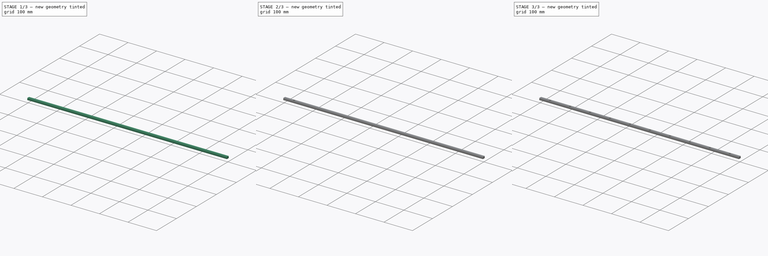
[diagram: build sequence overview — one tinted view per stage of 3, left to right]
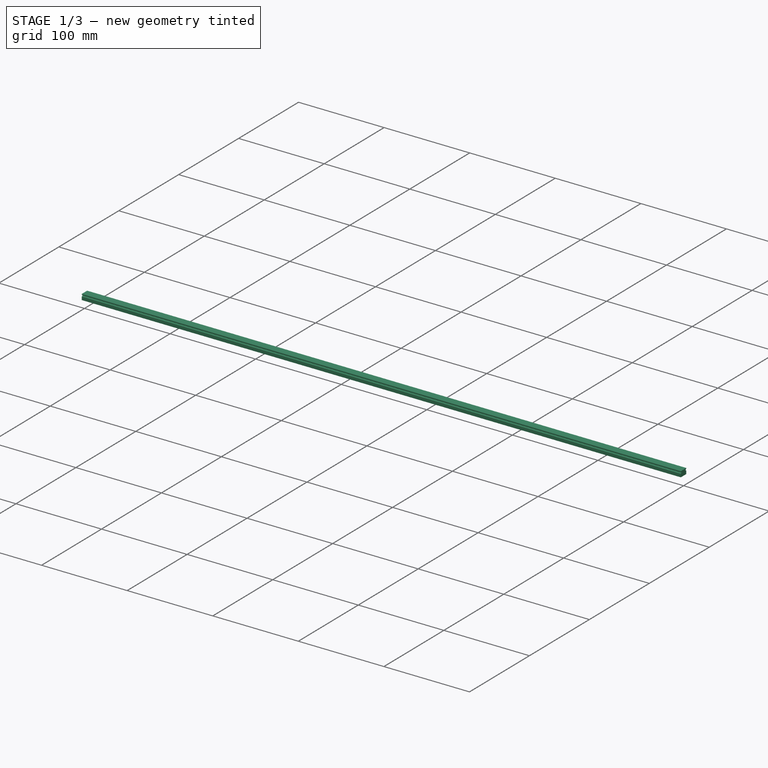
[diagram: stage 1 of 3 — iso view after this stage's code; geometry added in this stage tinted green]
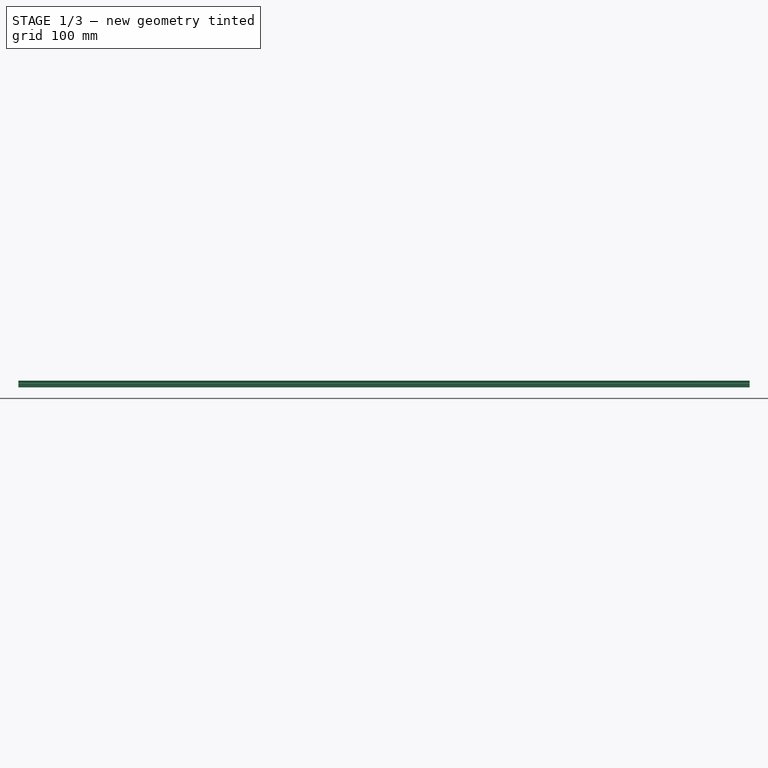
[diagram: stage 1 of 3 — front view after this stage's code; geometry added in this stage tinted green]
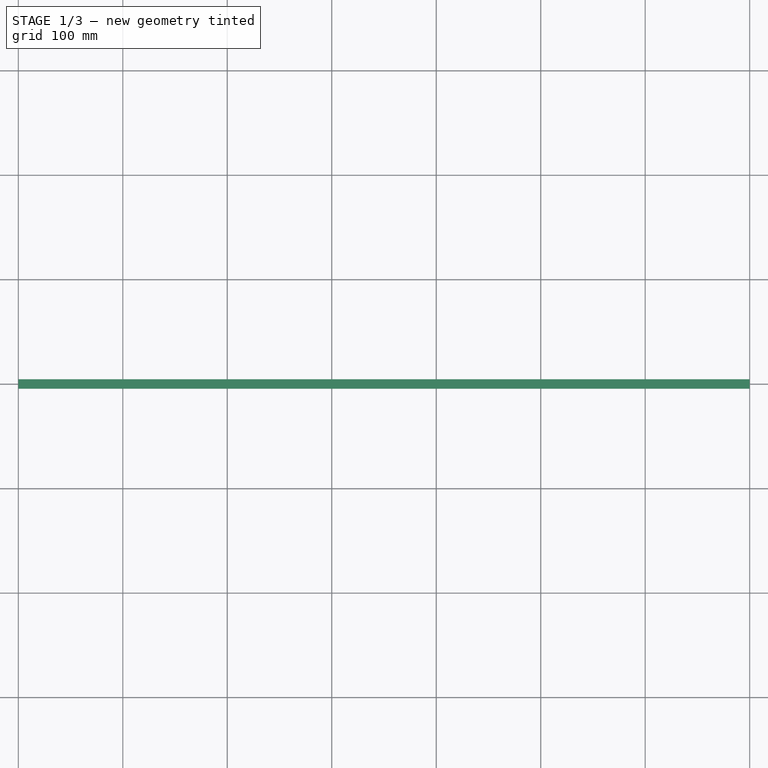
[diagram: stage 1 of 3 — top view after this stage's code; geometry added in this stage tinted green]
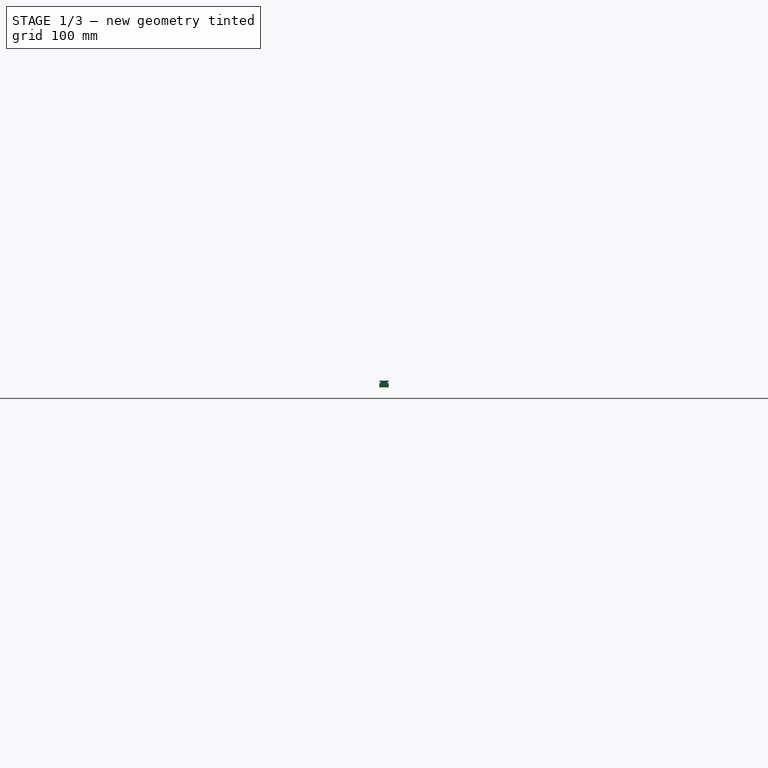
[diagram: stage 1 of 3 — right view after this stage's code; geometry added in this stage tinted green]
FCSTD DOCUMENT  (FreeCAD 1.0R39319 (Git))
Label: Guia_Linear com carrinho
License: Public Domain
LicenseURL: http://en.wikipedia.org/wiki/Public_domain
objects: Sketcher::SketchObject×4, PartDesign::Pocket×3, PartDesign::Pad×1, Spreadsheet::Sheet×1, PartDesign::Chamfer×1, PartDesign::LinearPattern×1, PartDesign::Body×1, Part::Feature×1, App::Part×1
note: 27 computed .brp shape members not serialized (recipe doc carries the construction recipe); baked Part::Feature solids carry a one-line shape summary decoded from their .brp

FEATURE [Sketcher::SketchObject] Sketch004
  ArcFitTolerance = 0
  AttachmentSupport = -> [YZ_Plane002]
  FullyConstrained = true
  MakeInternals = false
  MapMode = 5
  Placement = pos=(0,0,0) rot=(0.57735,0.57735,0.57735;2.0944rad)
  sketch-geometry (4):
    g0: LineSegment StartX=-4.5 StartY=0 StartZ=0 EndX=4.5 EndY=0 EndZ=0
    g1: LineSegment StartX=4.5 StartY=0 StartZ=0 EndX=4.5 EndY=6.5 EndZ=0
    g2: LineSegment StartX=4.5 StartY=6.5 StartZ=0 EndX=-4.5 EndY=6.5 EndZ=0
    g3: LineSegment StartX=-4.5 StartY=6.5 StartZ=0 EndX=-4.5 EndY=0 EndZ=0
  constraints (11):
    c: Coincident(g0,g1)
    c: Coincident(g1,g2)
    c: Coincident(g2,g3)
    c: Coincident(g3,g0)
    c: Horizontal(g0)
    c: Horizontal(g2)
    c: Vertical(g1)
    c: Vertical(g3)
    c: Symmetric(g0,g0,g-1)
    c: DistanceX(g0,g0) = 9  'width'
    c: DistanceY(g1,g1) = 6.5  'height'
FEATURE [PartDesign::Pad] Pad004
  Direction = (1,0,0)
  Length = 700
  Length2 = 10
  Placement = pos=(0,0,0) rot=(0.57735,0.57735,0.57735;2.0944rad)
  Profile = -> Sketch004
  ReferenceAxis = -> Sketch004 [N_Axis]
  Suppressed = false
  Type = 0
  expr: Length = Spreadsheet001.length
FEATURE [Sketcher::SketchObject] Sketch005
  ArcFitTolerance = 0
  AttachmentSupport = -> [YZ_Plane002]
  FullyConstrained = true
  MakeInternals = false
  MapMode = 5
  Placement = pos=(0,0,0) rot=(0.57735,-0.57735,-0.57735;2.0944rad)
  expr: Constraints[13] = 6.5 - 1.8
  expr: Constraints[14] = <<Sketch004>>.Constraints.width / 2 + 0.1 mm
  sketch-geometry (10):
    g0: ArcOfCircle CenterX=-4.6 CenterY=4.7 CenterZ=0 NormalX=0 NormalY=0 NormalZ=1 AngleXU=0 Radius=1 StartAngle=0.25268 EndAngle=6.03051
    g1: LineSegment StartX=-3.63175 StartY=4.95 StartZ=0 EndX=-3.13175 EndY=4.95 EndZ=0
    g2: LineSegment StartX=-3.13175 StartY=4.95 StartZ=0 EndX=-3.13175 EndY=4.45 EndZ=0
    g3: LineSegment StartX=-3.13175 StartY=4.45 StartZ=0 EndX=-3.63175 EndY=4.45 EndZ=0
    g4: LineSegment [constr] StartX=-4.6 StartY=4.7 StartZ=0 EndX=-3.13175 EndY=4.7 EndZ=0
    g5: ArcOfCircle CenterX=4.6 CenterY=4.7 CenterZ=0 NormalX=0 NormalY=0 NormalZ=1 AngleXU=0 Radius=1 StartAngle=3.39427 EndAngle=9.1721
    g6: LineSegment StartX=3.63175 StartY=4.95 StartZ=0 EndX=3.13175 EndY=4.95 EndZ=0
    g7: LineSegment StartX=3.13175 StartY=4.95 StartZ=0 EndX=3.13175 EndY=4.45 EndZ=0
    g8: LineSegment StartX=3.13175 StartY=4.45 StartZ=0 EndX=3.63175 EndY=4.45 EndZ=0
    g9: LineSegment [constr] StartX=4.6 StartY=4.7 StartZ=0 EndX=3.13175 EndY=4.7 EndZ=0
  constraints (29):
    c: Horizontal(g1)
    c: Coincident(g2,g1)
    c: Vertical(g2)
    c: Coincident(g3,g2)
    c: Horizontal(g3)
    c: Coincident(g4,g0)
    c: Horizontal(g4)
    c: Symmetric(g2,g1,g4)
    c: Coincident(g0,g3)
    c: Coincident(g0,g1)
    c: DistanceY(g2,g2) = 0.5
    c: DistanceX(g1,g1) = 0.5
    c: Diameter(g0) = 2
    c: DistanceY(g-1,g0) = 4.7
    c: DistanceX(g0,g-1) = 4.6
    c: Horizontal(g6)
    c: Coincident(g7,g6)
    c: Vertical(g7)
    c: Coincident(g8,g7)
    c: Horizontal(g8)
    c: Coincident(g9,g5)
    c: Horizontal(g9)
    c: Symmetric(g7,g6,g9)
    c: Coincident(g5,g8)
    c: Coincident(g5,g6)
    c: Diameter(g5) = 2
    c: Symmetric(g4,g9,g-2)
    c: Equal(g2,g7)
    c: Equal(g1,g6)
FEATURE [PartDesign::Pocket] Pocket005  label="Balls cut"
  BaseFeature = -> Pad004
  Direction = (1,0,0)
  Length = 5
  Length2 = 5
  Placement = pos=(0,0,0) rot=(0.57735,0.57735,0.57735;2.0944rad)
  Profile = -> Sketch005
  ReferenceAxis = -> Sketch005 [N_Axis]
  Suppressed = false
  Type = 1
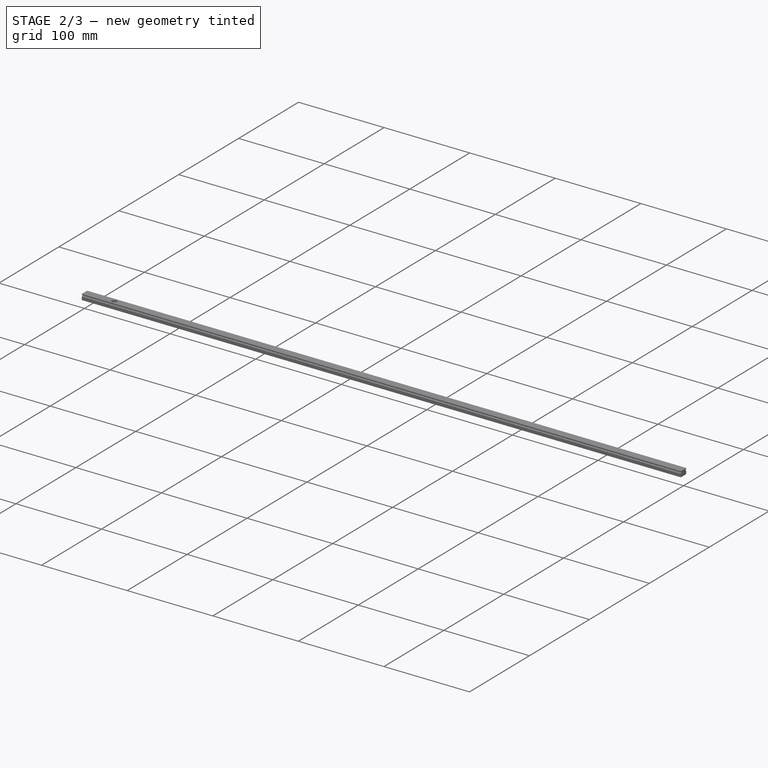
[diagram: stage 2 of 3 — iso view after this stage's code; geometry added in this stage tinted green]
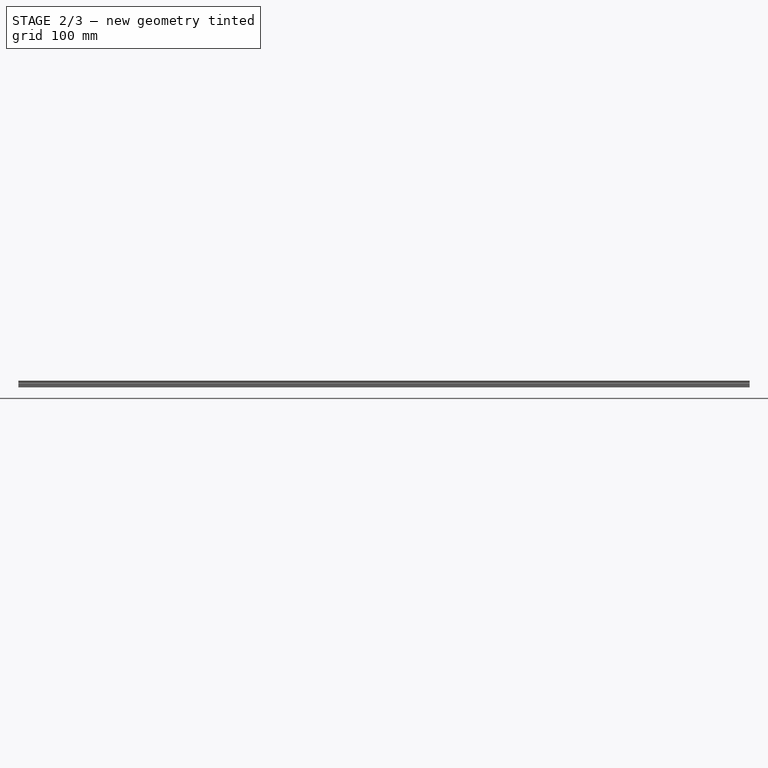
[diagram: stage 2 of 3 — front view after this stage's code; geometry added in this stage tinted green]
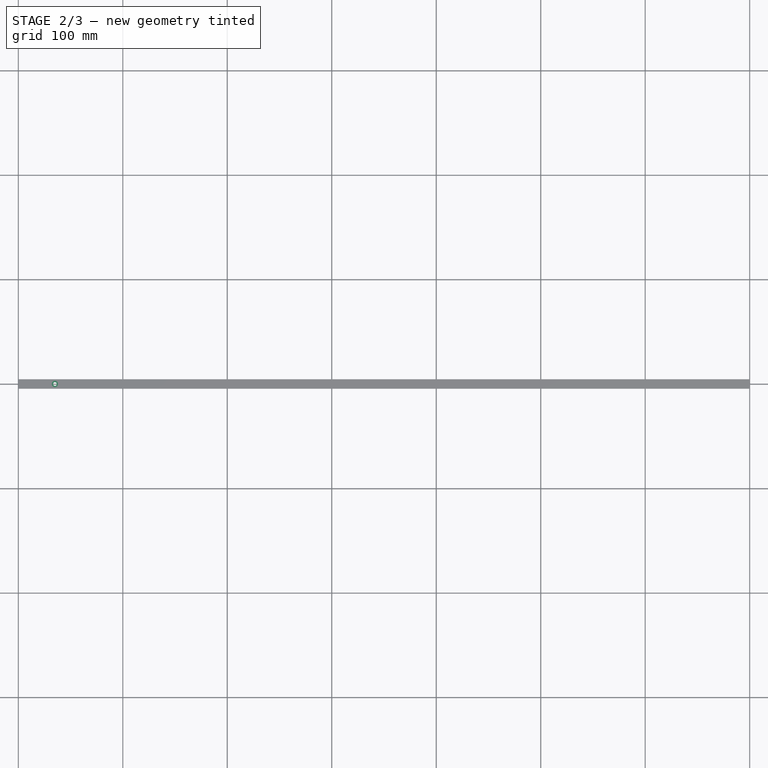
[diagram: stage 2 of 3 — top view after this stage's code; geometry added in this stage tinted green]
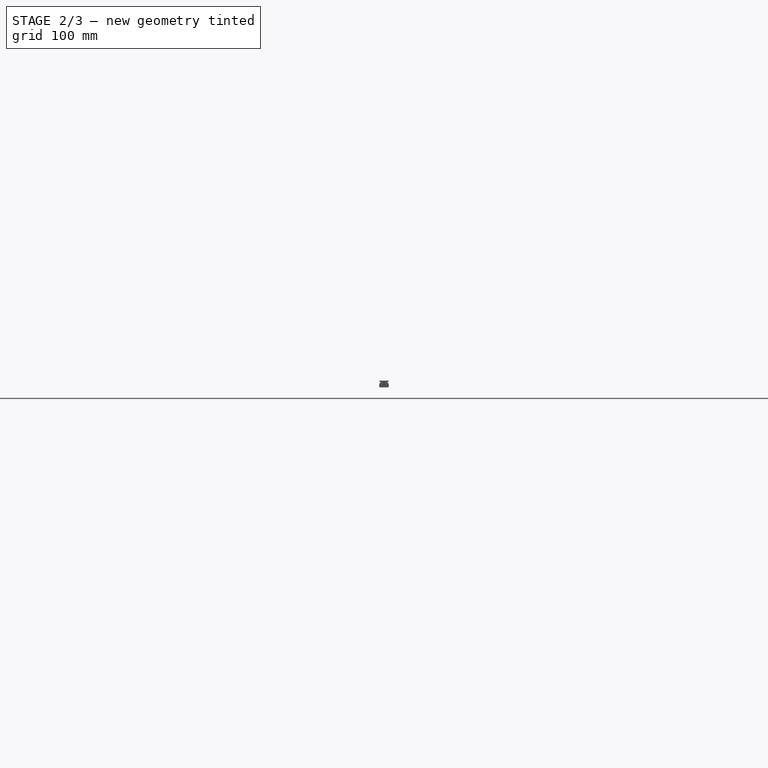
[diagram: stage 2 of 3 — right view after this stage's code; geometry added in this stage tinted green]
FEATURE [Sketcher::SketchObject] Sketch006
  ArcFitTolerance = 0
  AttachmentOffset = pos=(35,0,0) rot=(0,0,1;1.5708rad)
  AttachmentSupport = -> [XY_Plane002]
  FullyConstrained = true
  MakeInternals = false
  MapMode = 5
  Placement = pos=(35,0,0) rot=(0,0,1;1.5708rad)
  expr: .AttachmentOffset.Base.x = Spreadsheet001.offset
  sketch-geometry (1):
    g0: Circle CenterX=0 CenterY=0 CenterZ=0 NormalX=0 NormalY=0 NormalZ=1 AngleXU=0 Radius=1.75
  constraints (2):
    c: Coincident(g0,g-1)
    c: Diameter(g0) = 3.5
FEATURE [PartDesign::Pocket] Pocket006  label="Screw hole"
  BaseFeature = -> Pocket005
  Direction = (0,0,-1)
  Length = 5
  Length2 = 5
  Midplane = true
  Placement = pos=(0,0,0) rot=(0.57735,0.57735,0.57735;2.0944rad)
  Profile = -> Sketch006
  ReferenceAxis = -> Sketch006 [N_Axis]
  Suppressed = false
  Type = 1
FEATURE [Spreadsheet::Sheet] Spreadsheet001  label="Spreadsheet_MGN9"
  cells = A1='Length rail; B1='Длина рельсы, мм; C1(length)=700; A2='Holes distance; B2='Расстояние между отверстиями; C2(holes_distance)=70; A3='Holes number; B3='Количество отверстий; C3(holes_number)==floor((length - min_offset * 2) / holes_distance) + 1; A4='Distance end holes; B4='Расстояние между центрами крайних отверстий; C4(distance)==holes_distance * (holes_number - 1); A5='Offset 1st hole; B5='Позиция 1го отверстия; C5(offset)==(length - distance) / 2; A6='Min offset 1st hole; B6='Минимальное расстояние от края до центра 1го отверстия; C6(min_offset)=5
FEATURE [Sketcher::SketchObject] Sketch007
  ArcFitTolerance = 0
  AttachmentOffset = pos=(35,0,6.5) rot=(0,0,1;1.5708rad)
  AttachmentSupport = -> [XY_Plane002]
  FullyConstrained = true
  MakeInternals = false
  MapMode = 5
  Placement = pos=(35,0,6.5) rot=(0,0,1;1.5708rad)
  expr: .AttachmentOffset.Base.x = Spreadsheet001.offset
  expr: .AttachmentOffset.Base.z = Sketch004.Constraints.height
  sketch-geometry (1):
    g0: Circle CenterX=0 CenterY=0 CenterZ=0 NormalX=0 NormalY=0 NormalZ=1 AngleXU=0 Radius=3
  constraints (2):
    c: Coincident(g0,g-1)
    c: Diameter(g0) = 6
FEATURE [PartDesign::Pocket] Pocket007  label="Screw head cut"
  BaseFeature = -> Pocket006
  Direction = (0,0,-1)
  Length = 3.5
  Length2 = 5
  Placement = pos=(0,0,0) rot=(0.57735,0.57735,0.57735;2.0944rad)
  Profile = -> Sketch007
  ReferenceAxis = -> Sketch007 [N_Axis]
  Suppressed = false
  Type = 0
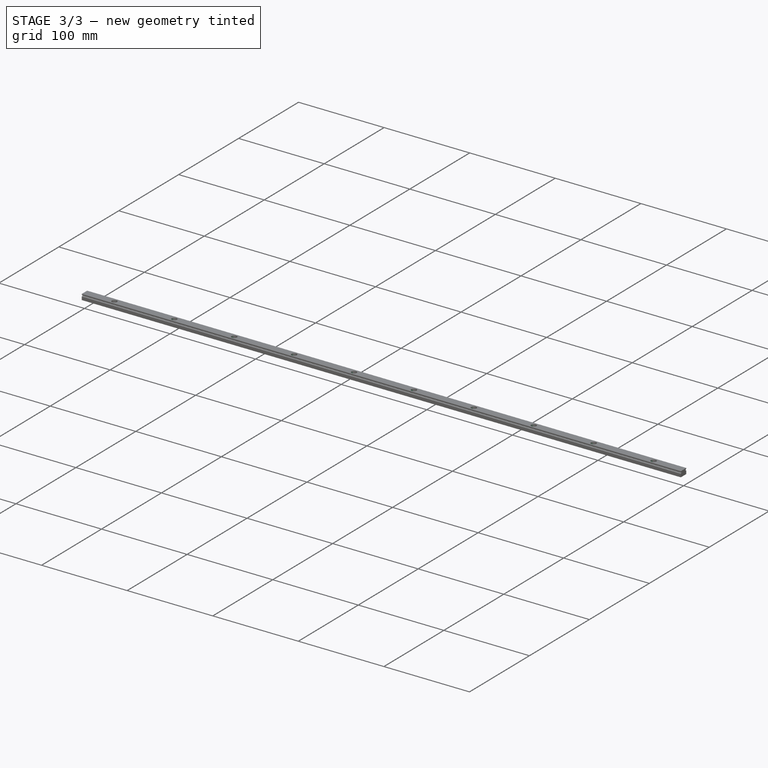
[diagram: stage 3 of 3 — iso view after this stage's code; geometry added in this stage tinted green]
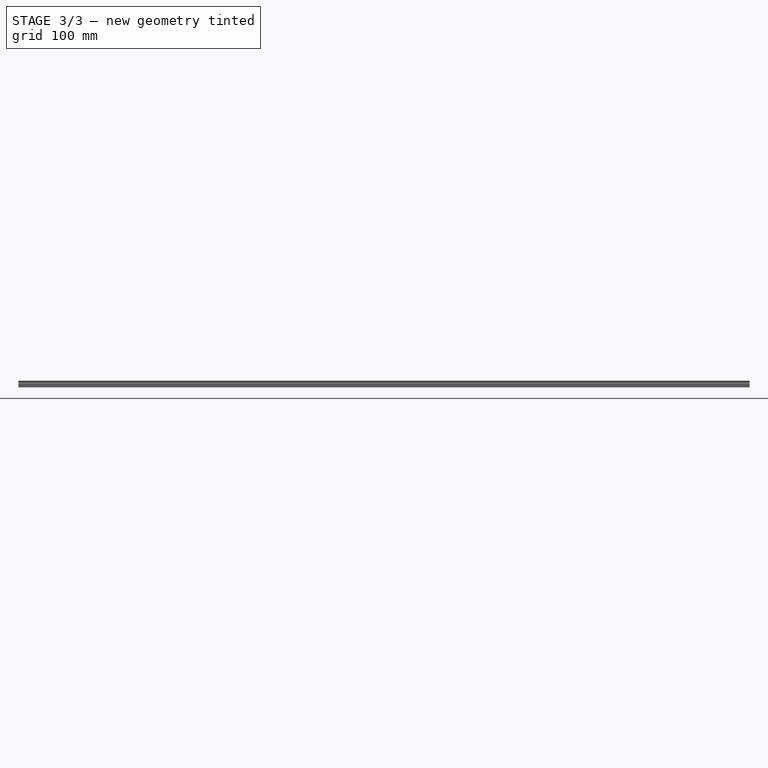
[diagram: stage 3 of 3 — front view after this stage's code; geometry added in this stage tinted green]
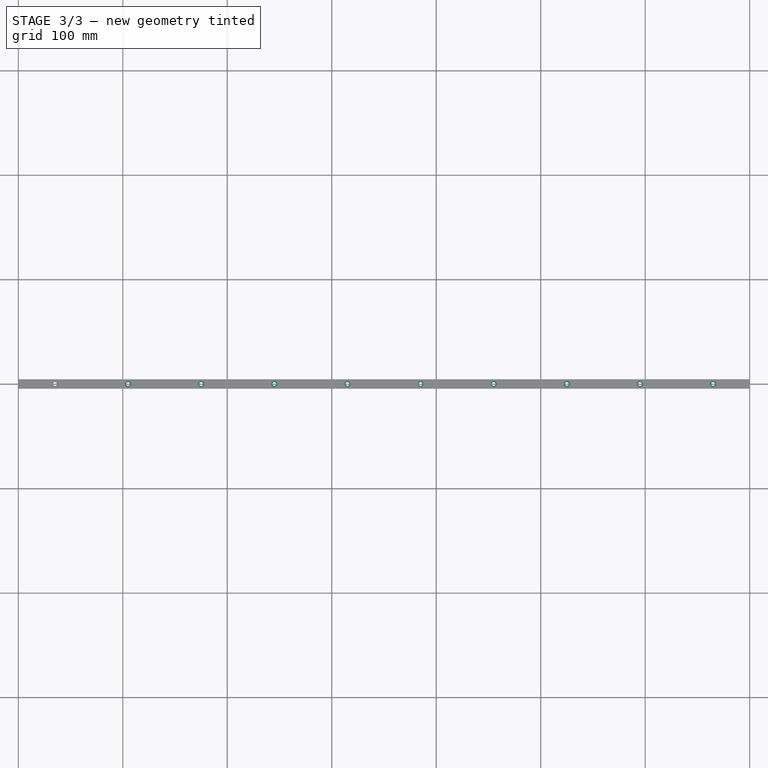
[diagram: stage 3 of 3 — top view after this stage's code; geometry added in this stage tinted green]
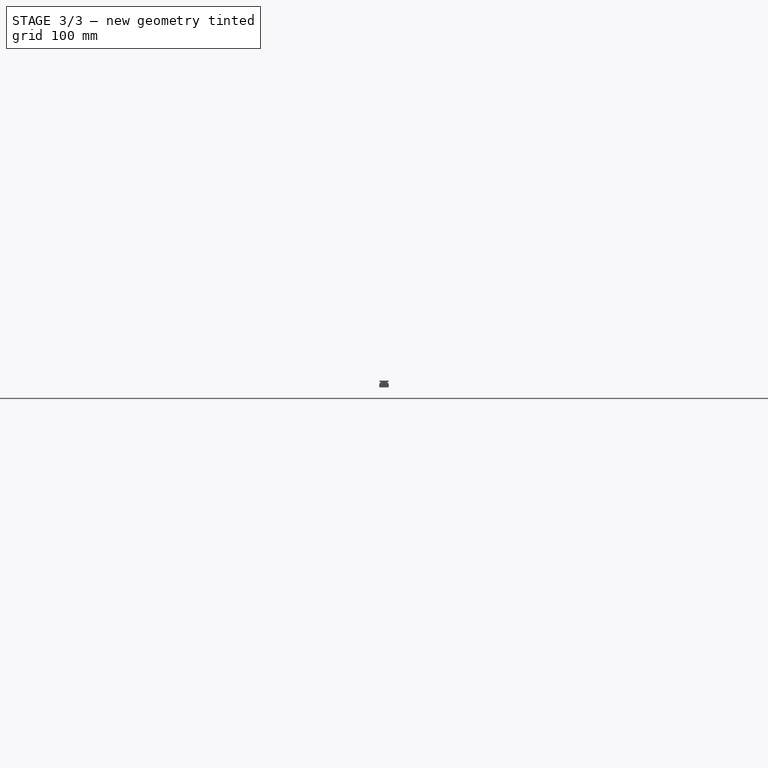
[diagram: stage 3 of 3 — right view after this stage's code; geometry added in this stage tinted green]
FEATURE [PartDesign::Chamfer] Chamfer001  label="Chamfer"
  Angle = 45
  Base = -> Pocket007 [Edge47]
  BaseFeature = -> Pocket007
  ChamferType = 0
  FlipDirection = false
  Placement = pos=(0,0,0) rot=(0.57735,0.57735,0.57735;2.0944rad)
  Size = 0.2
  Size2 = 1
  SupportTransform = false
  Suppressed = false
  UseAllEdges = false
FEATURE [PartDesign::LinearPattern] LinearPattern001  label="LinearPattern"
  BaseFeature = -> Chamfer001
  Direction = -> Sketch006 [V_Axis]
  Length = 630
  Mode = 0
  Occurrences = 10
  Offset = 70
  Originals = -> [Pocket006,Pocket007,Chamfer001]
  Placement = pos=(0,0,0) rot=(0.57735,0.57735,0.57735;2.0944rad)
  Reversed = true
  Suppressed = false
  TransformMode = 0
  expr: Length = Spreadsheet001.distance
  expr: Occurrences = Spreadsheet001.holes_number
FEATURE [PartDesign::Body] Body001  label="Guia "
  AllowCompound = false
  Group = -> [Sketch004,Pad004,Sketch005,Pocket005,Sketch006,Pocket006,Sketch007,Pocket007,Chamfer001,LinearPattern001]
  Origin = -> Origin002
  Tip = -> LinearPattern001
FEATURE [Part::Feature] Part__Feature008002002006397  label="Carrinho "
  Placement = pos=(52,0,6) rot=(0.57735,0.57735,0.57735;2.0944rad)
  shape: bbox 40.67 x 20.01 x 8.005 mm, 245 faces, 9 solids (baked)
FEATURE [App::Part] Part002002  label="Guia Linear"
  Group = -> [Body001,Spreadsheet001,Part__Feature008002002006397]
  Origin = -> Origin003
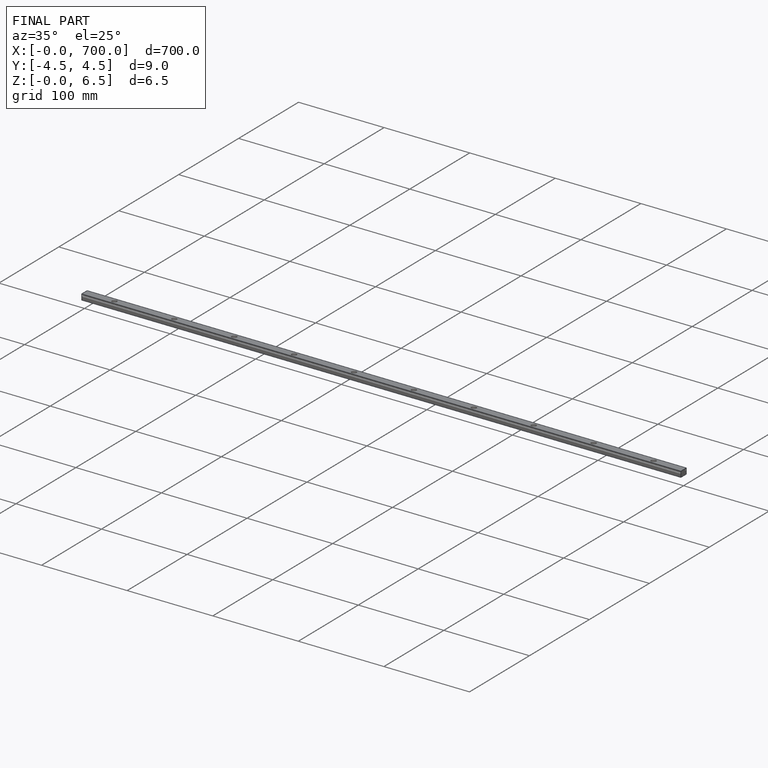
[diagram: finished part — iso view with bounding-box wireframe]
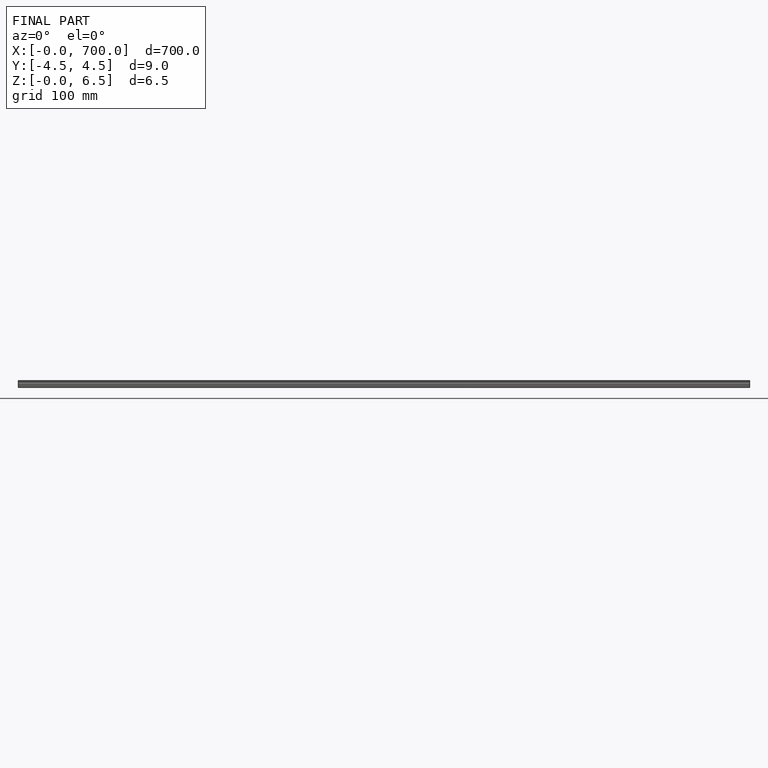
[diagram: finished part — front view with bounding-box wireframe]
